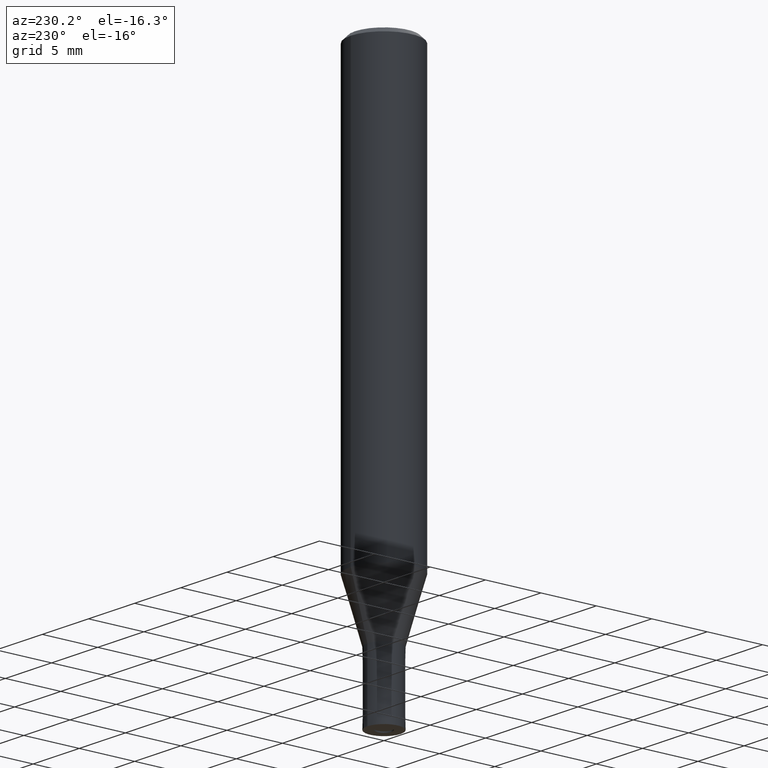
[diagram: clean part render]
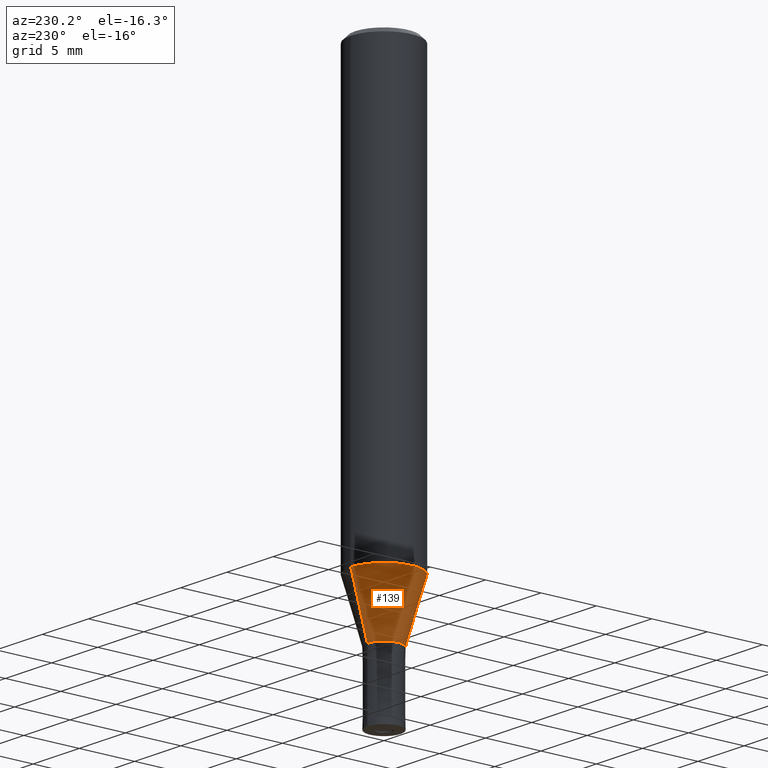
[diagram: same view with one face highlighted and labeled with its STEP entity id]
A machine part, auxiliary view. The second image highlights one B-rep face of the part: STEP entity #139.
In plain terms, the highlighted conical surface has half-angle 16 deg.
Its self-contained STEP definition (entity closure, byte-faithful):
#139=ADVANCED_FACE('',(#316),#317,.T.);
#151=VERTEX_POINT('',#329);
#171=VERTEX_POINT('',#351);
#179=VERTEX_POINT('',#359);
#199=EDGE_CURVE('',#171,#151,#380,.T.);
#207=EDGE_CURVE('',#171,#179,#389,.T.);
#217=EDGE_CURVE('',#235,#179,#402,.T.);
#225=EDGE_CURVE('',#151,#235,#410,.T.);
#235=VERTEX_POINT('',#423);
#316=FACE_OUTER_BOUND('',#507,.T.);
#317=CONICAL_SURFACE('',#508,2.24995,0.279258842899557);
#329=CARTESIAN_POINT('',(3.67375783114944E-016,-2.99995,-38.769));
#351=CARTESIAN_POINT('',(1.83684830041587E-016,-1.49995,-44.0));
#359=CARTESIAN_POINT('',(0.0,1.49995,-44.0));
#380=LINE('',#594,#595);
#389=CIRCLE('',#606,1.49995);
#402=LINE('',#621,#622);
#410=CIRCLE('',#631,2.99995);
#423=CARTESIAN_POINT('',(0.0,2.99995,-38.769));
#507=EDGE_LOOP('',(#737,#738,#739,#740));
#508=AXIS2_PLACEMENT_3D('',#741,#742,#743);
#594=CARTESIAN_POINT('',(2.75530306578266E-016,-2.24995,-41.3845));
#595=VECTOR('',#803,1.0);
#606=AXIS2_PLACEMENT_3D('',#815,#816,#817);
#621=CARTESIAN_POINT('',(-2.75530306578266E-016,2.24995,-41.3845));
#622=VECTOR('',#835,1.0);
#631=AXIS2_PLACEMENT_3D('',#840,#841,#842);
#737=ORIENTED_EDGE('',*,*,#217,.T.);
#738=ORIENTED_EDGE('',*,*,#207,.F.);
#739=ORIENTED_EDGE('',*,*,#199,.T.);
#740=ORIENTED_EDGE('',*,*,#225,.T.);
#741=CARTESIAN_POINT('',(0.0,0.0,-41.3845));
#742=DIRECTION('',(-0.0,-0.0,1.0));
#743=DIRECTION('',(0.0,1.0,0.0));
#803=DIRECTION('',(3.37554511665357E-017,-0.275643279664313,0.961259997282682));
#815=CARTESIAN_POINT('',(0.0,0.0,-44.0));
#816=DIRECTION('',(0.0,0.0,-1.0));
#817=DIRECTION('',(0.0,1.0,0.0));
#835=DIRECTION('',(3.37554511665356E-017,-0.275643279664313,-0.961259997282682));
#840=CARTESIAN_POINT('',(0.0,0.0,-38.769));
#841=DIRECTION('',(0.0,0.0,-1.0));
#842=DIRECTION('',(0.0,1.0,0.0));